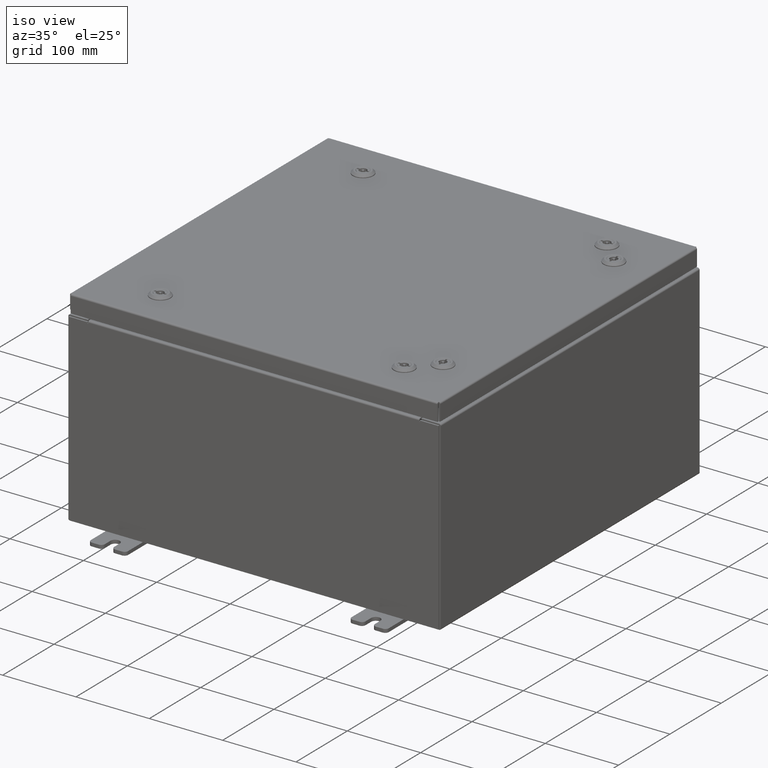
[diagram: clean part render]
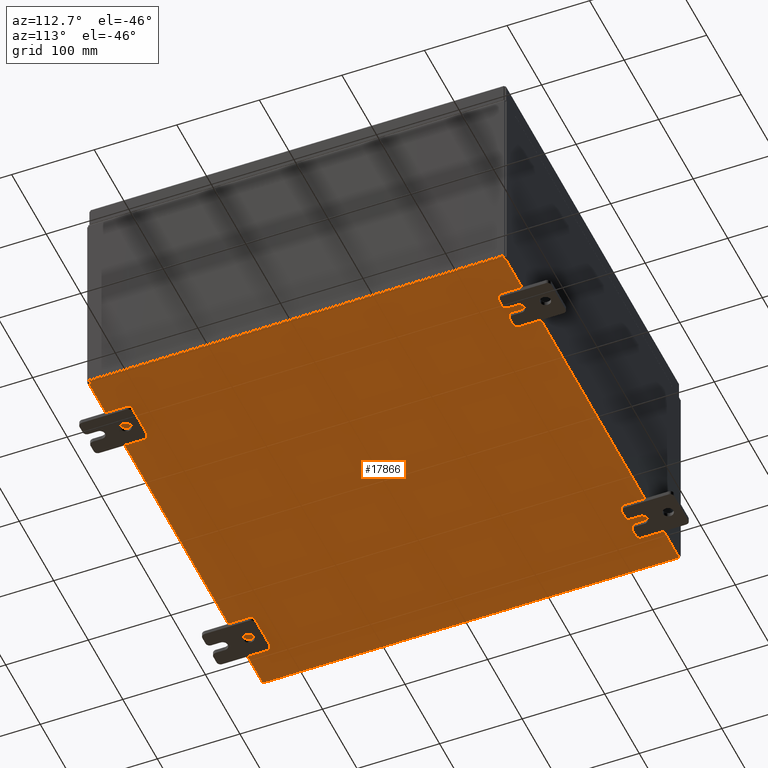
[diagram: tour spotlight — one face highlighted and labeled with its STEP entity id]
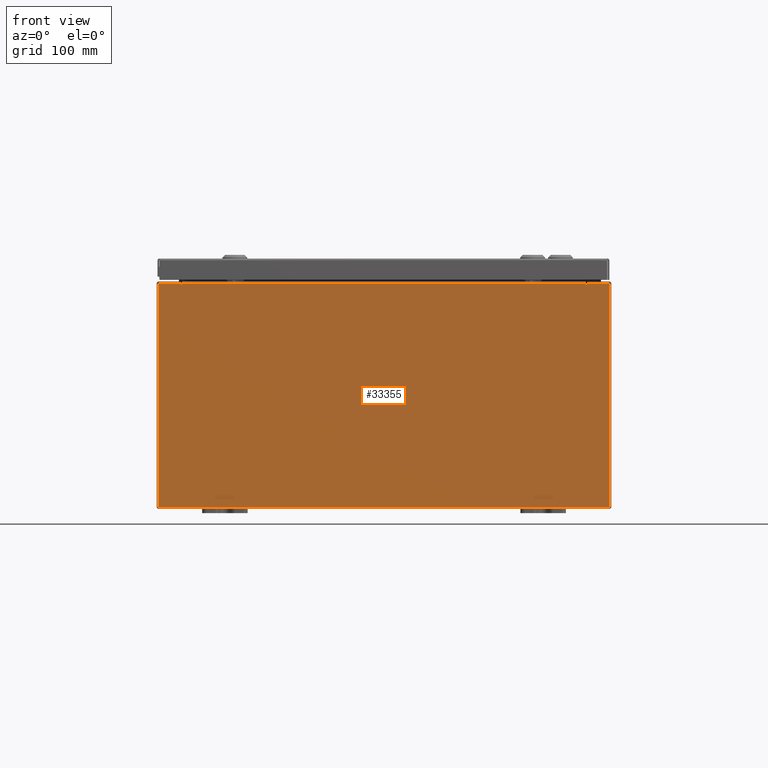
[diagram: tour spotlight — one face highlighted and labeled with its STEP entity id]
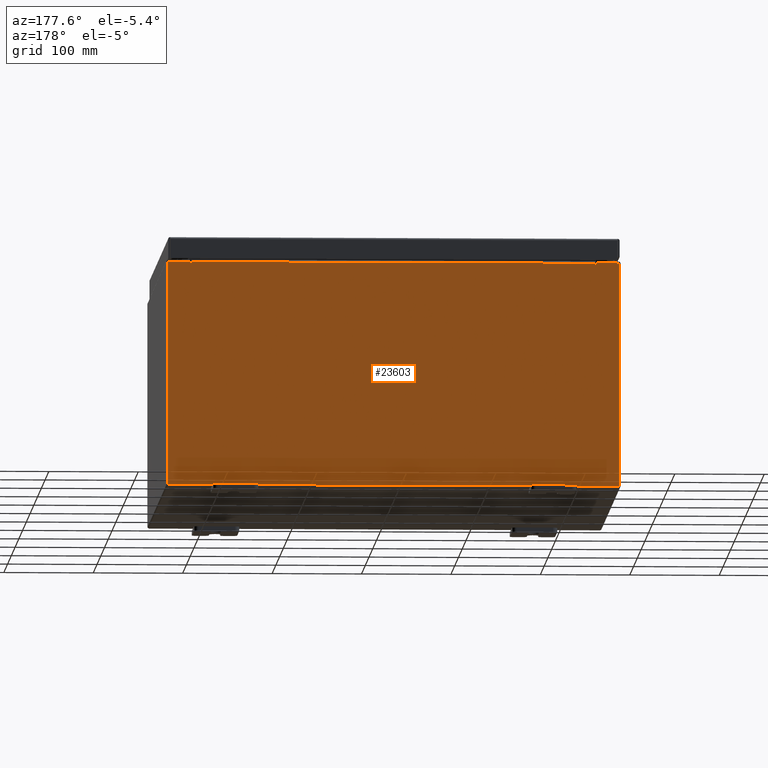
[diagram: tour spotlight — one face highlighted and labeled with its STEP entity id]
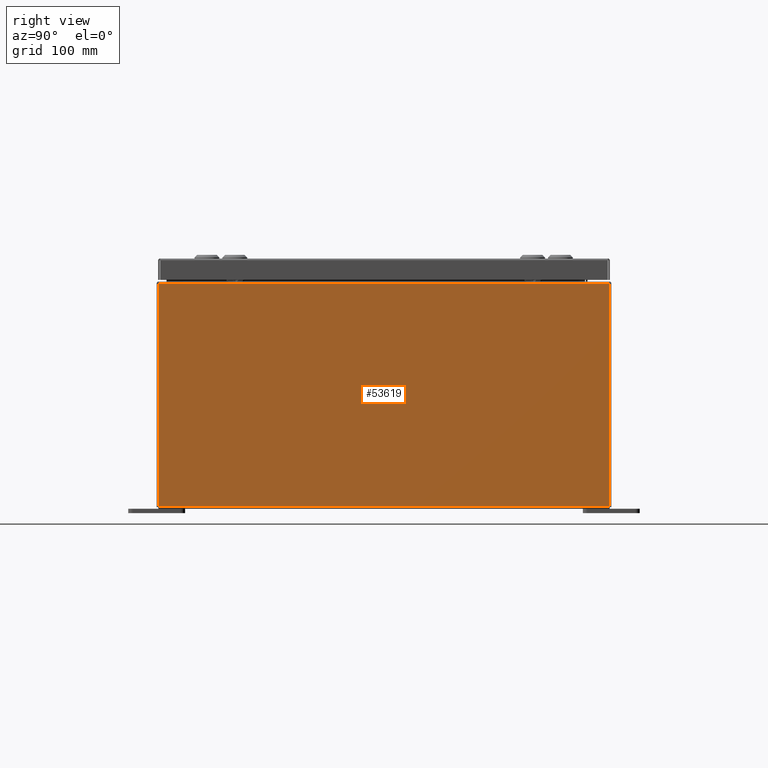
[diagram: tour spotlight — one face highlighted and labeled with its STEP entity id]
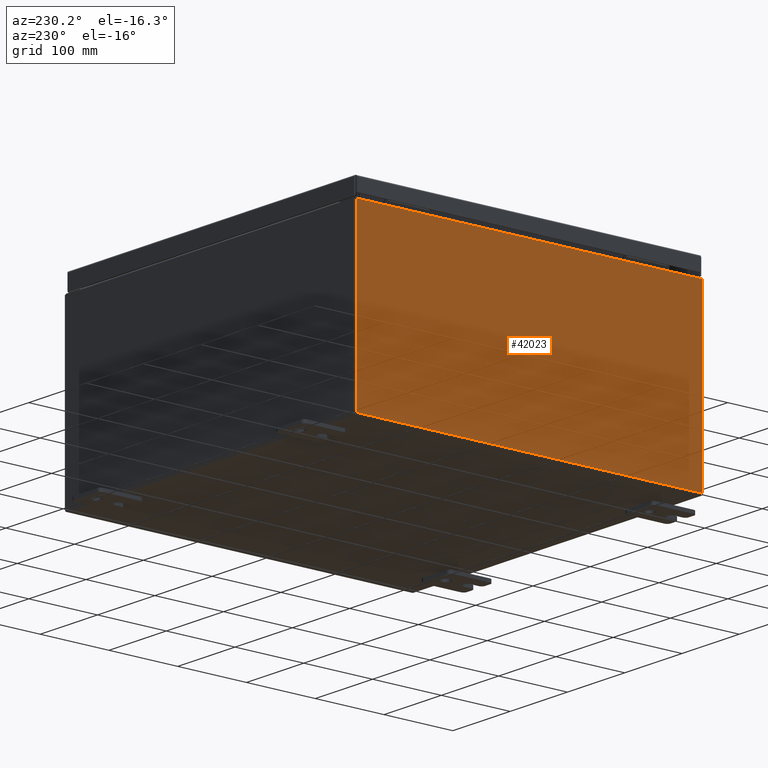
[diagram: tour spotlight — one face highlighted and labeled with its STEP entity id]
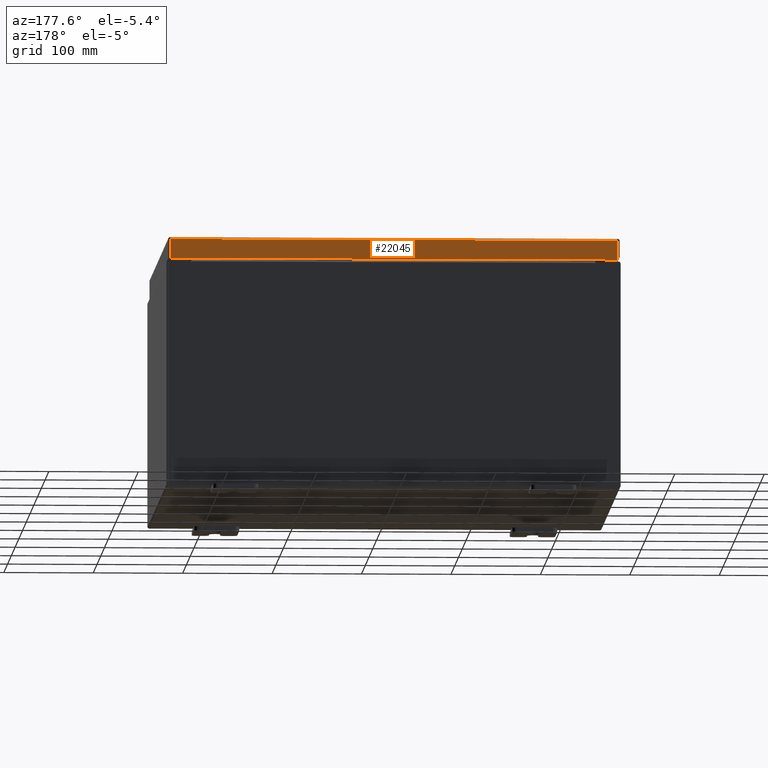
[diagram: tour spotlight — one face highlighted and labeled with its STEP entity id]
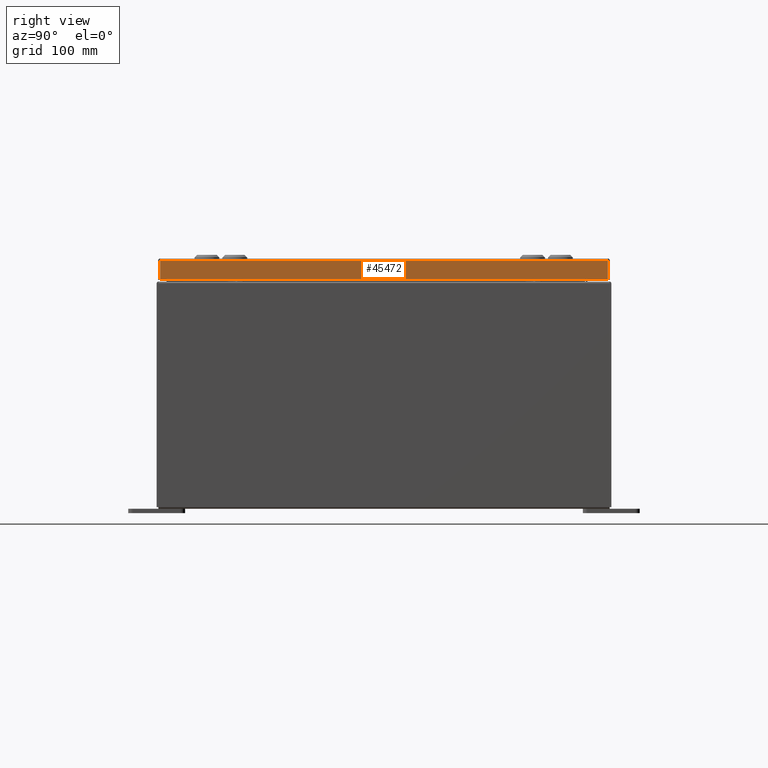
[diagram: tour spotlight — one face highlighted and labeled with its STEP entity id]
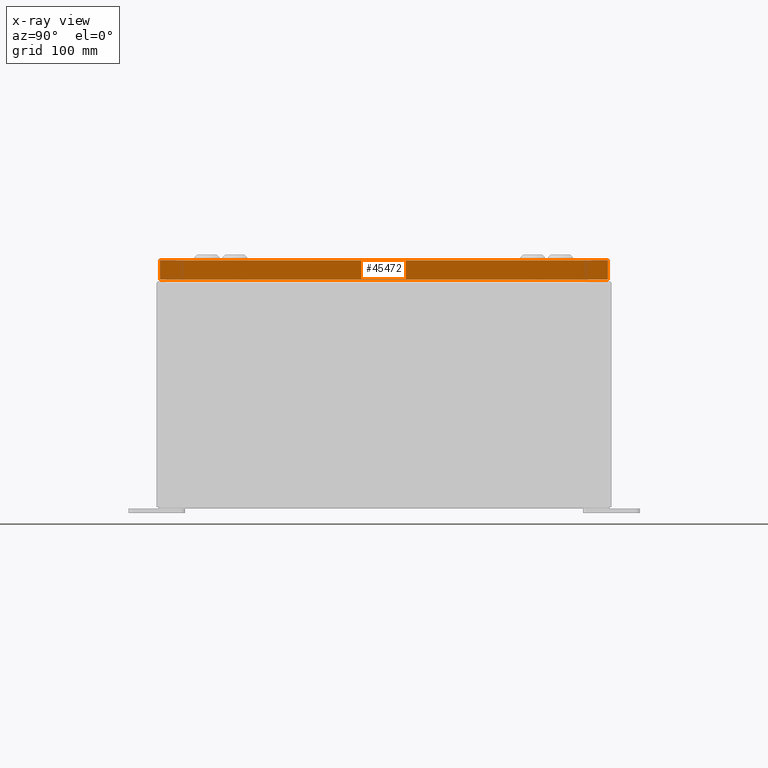
[diagram: x-ray of the same camera — body ghosted, this tour face saturated]
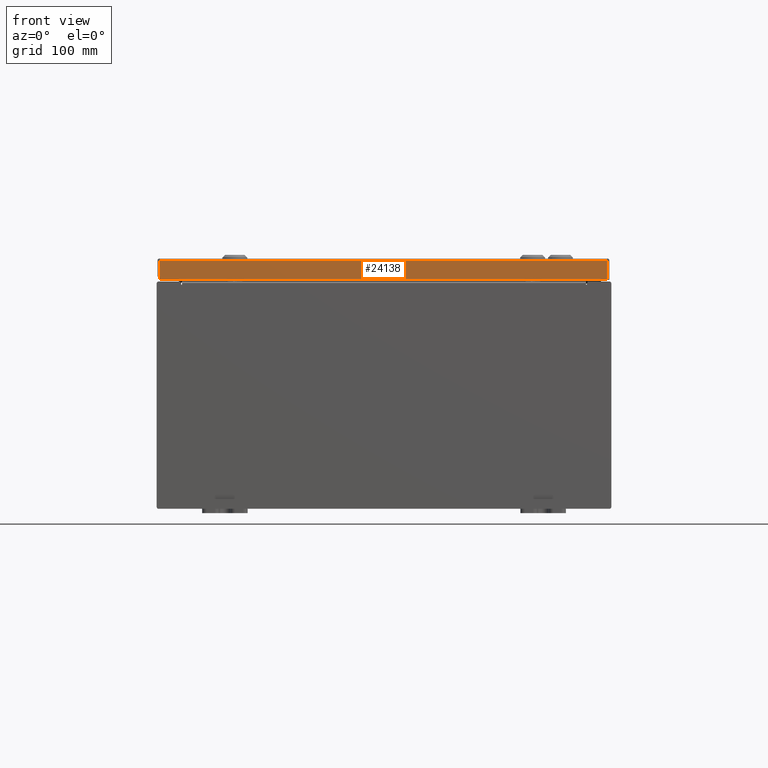
[diagram: tour spotlight — one face highlighted and labeled with its STEP entity id]
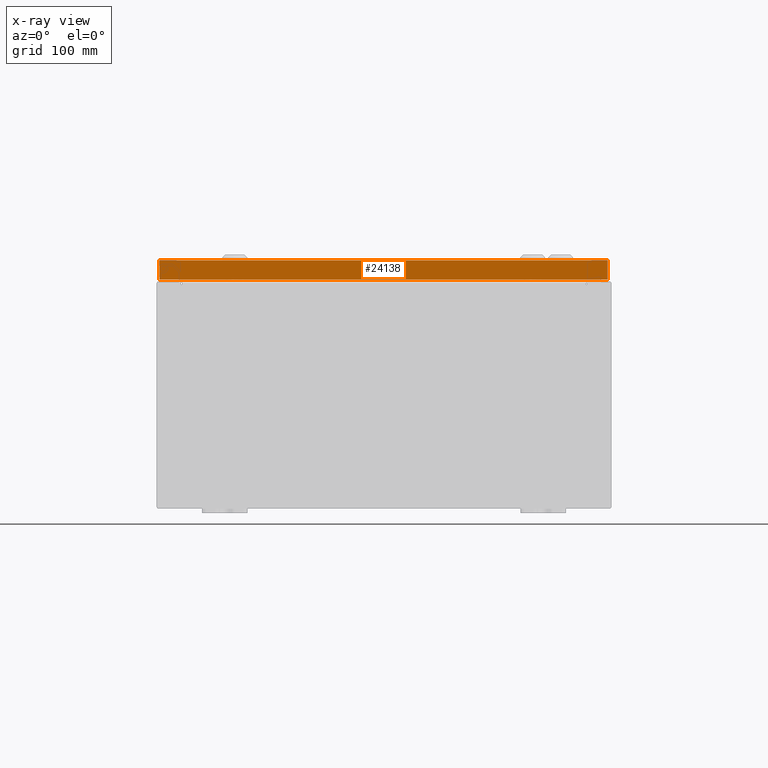
[diagram: x-ray of the same camera — body ghosted, this tour face saturated]
A machine part: a face-by-face anatomy tour. The part has 5420 B-rep faces; the first image is the clean iso view, then the 8 largest visible faces are spotlighted one at a time (largest first), each with its STEP entity span.

Face 1 — auxiliary view, entity #17866. In plain terms, the highlighted planar face has unit normal (0, 0, -1).
Definition (entity closure, byte-faithful):
#966 = DIRECTION ( 'NONE',  ( -0.0000000000000000000, -1.000000000000000000, -0.0000000000000000000 ) ) ;
#1822 = VECTOR ( 'NONE', #48855, 39.37007874015748100 ) ;
#2747 = CARTESIAN_POINT ( 'NONE',  ( 9.912300000000000100, 9.925299999999998200, -0.07469999999999994700 ) ) ;
#4089 = EDGE_CURVE ( 'NONE', #59788, #8283, #59380, .T. ) ;
#5660 = VECTOR ( 'NONE', #39935, 39.37007874015748100 ) ;
#6390 = LINE ( 'NONE', #9672, #1822 ) ;
#7808 = PLANE ( 'NONE',  #49365 ) ;
#8283 = VERTEX_POINT ( 'NONE', #26475 ) ;
#8481 = ORIENTED_EDGE ( 'NONE', *, *, #4089, .F. ) ;
#9672 = CARTESIAN_POINT ( 'NONE',  ( -9.912300000000000100, -9.925299999999998200, -0.07469999999999994700 ) ) ;
#10809 = CARTESIAN_POINT ( 'NONE',  ( 9.912300000000000100, 9.925300000000001800, -0.07469999999999994700 ) ) ;
#12325 = EDGE_CURVE ( 'NONE', #13354, #14146, #29523, .T. ) ;
#13354 = VERTEX_POINT ( 'NONE', #18560 ) ;
#14146 = VERTEX_POINT ( 'NONE', #58569 ) ;
#15110 = ORIENTED_EDGE ( 'NONE', *, *, #16945, .T. ) ;
#16945 = EDGE_CURVE ( 'NONE', #13354, #8283, #6390, .T. ) ;
#17517 = ORIENTED_EDGE ( 'NONE', *, *, #12325, .F. ) ;
#17866 = ADVANCED_FACE ( 'NONE', ( #56969 ), #7808, .T. ) ;
#18560 = CARTESIAN_POINT ( 'NONE',  ( -9.912300000000000100, -9.925299999999996500, -0.07469999999999994700 ) ) ;
#21784 = ORIENTED_EDGE ( 'NONE', *, *, #58938, .T. ) ;
#26475 = CARTESIAN_POINT ( 'NONE',  ( -9.912300000000000100, 9.925300000000001800, -0.07470000000000000300 ) ) ;
#27491 = DIRECTION ( 'NONE',  ( 0.0000000000000000000, 0.0000000000000000000, -1.000000000000000000 ) ) ;
#29523 = LINE ( 'NONE', #34141, #52535 ) ;
#34105 = VECTOR ( 'NONE', #966, 39.37007874015748100 ) ;
#34141 = CARTESIAN_POINT ( 'NONE',  ( -10.00000000000000000, -9.925299999999998200, -0.07470000000000000300 ) ) ;
#39935 = DIRECTION ( 'NONE',  ( -1.000000000000000000, -0.0000000000000000000, -0.0000000000000000000 ) ) ;
#45096 = EDGE_LOOP ( 'NONE', ( #17517, #15110, #8481, #21784 ) ) ;
#47003 = CARTESIAN_POINT ( 'NONE',  ( 0.0000000000000000000, 0.0000000000000000000, -0.07470000000000000300 ) ) ;
#48703 = LINE ( 'NONE', #10809, #34105 ) ;
#48855 = DIRECTION ( 'NONE',  ( -0.0000000000000000000, 1.000000000000000000, -0.0000000000000000000 ) ) ;
#49365 = AXIS2_PLACEMENT_3D ( 'NONE', #47003, #27491, #61823 ) ;
#52535 = VECTOR ( 'NONE', #63341, 39.37007874015748100 ) ;
#53770 = CARTESIAN_POINT ( 'NONE',  ( -10.00000000000000000, 9.925300000000001800, -0.07470000000000000300 ) ) ;
#56969 = FACE_OUTER_BOUND ( 'NONE', #45096, .T. ) ;
#58569 = CARTESIAN_POINT ( 'NONE',  ( 9.912300000000000100, -9.925299999999998200, -0.07470000000000000300 ) ) ;
#58938 = EDGE_CURVE ( 'NONE', #59788, #14146, #48703, .T. ) ;
#59380 = LINE ( 'NONE', #53770, #5660 ) ;
#59788 = VERTEX_POINT ( 'NONE', #2747 ) ;
#61823 = DIRECTION ( 'NONE',  ( -1.000000000000000000, 0.0000000000000000000, -0.0000000000000000000 ) ) ;
#63341 = DIRECTION ( 'NONE',  ( 1.000000000000000000, 0.0000000000000000000, 0.0000000000000000000 ) ) ;

Face 2 — front view, entity #33355. In plain terms, the highlighted planar face has unit normal (-0, 1, -0).
Definition (entity closure, byte-faithful):
#916 = CARTESIAN_POINT ( 'NONE',  ( 8.924550000000000000, 0.0000000000000000000, 4.874950000000000100 ) ) ;
#1231 = CARTESIAN_POINT ( 'NONE',  ( 9.925300000000000000, 0.0000000000000000000, 4.925300000000000000 ) ) ;
#2714 = DIRECTION ( 'NONE',  ( 0.0000000000000000000, -0.0000000000000000000, -1.000000000000000000 ) ) ;
#3171 = CARTESIAN_POINT ( 'NONE',  ( -9.925300000000000000, 0.0000000000000000000, -4.925300000000000000 ) ) ;
#3179 = CARTESIAN_POINT ( 'NONE',  ( 9.925300000000000000, 0.0000000000000000000, -4.925300000000000000 ) ) ;
#3961 = DIRECTION ( 'NONE',  ( 0.0000000000000000000, 0.0000000000000000000, -1.000000000000000000 ) ) ;
#5772 = VECTOR ( 'NONE', #8207, 39.37007874015748100 ) ;
#6126 = DIRECTION ( 'NONE',  ( 0.0000000000000000000, 0.0000000000000000000, -1.000000000000000000 ) ) ;
#6324 = ORIENTED_EDGE ( 'NONE', *, *, #10176, .T. ) ;
#6946 = CARTESIAN_POINT ( 'NONE',  ( 8.924549999999788600, -0.0000000000000000000, -3.873765880731794300E-013 ) ) ;
#8207 = DIRECTION ( 'NONE',  ( 1.000000000000000000, 0.0000000000000000000, 0.0000000000000000000 ) ) ;
#10176 = EDGE_CURVE ( 'NONE', #60413, #14926, #60407, .T. ) ;
#10393 = CARTESIAN_POINT ( 'NONE',  ( -9.925300000000000000, 0.0000000000000000000, 4.925300000000000000 ) ) ;
#10802 = EDGE_CURVE ( 'NONE', #16982, #40833, #56525, .T. ) ;
#11219 = LINE ( 'NONE', #6946, #60302 ) ;
#11547 = VERTEX_POINT ( 'NONE', #3179 ) ;
#12268 = DIRECTION ( 'NONE',  ( 0.0000000000000000000, 0.0000000000000000000, 1.000000000000000000 ) ) ;
#12315 = CARTESIAN_POINT ( 'NONE',  ( 8.887200000000000000, 0.0000000000000000000, 4.874950000000000100 ) ) ;
#12525 = DIRECTION ( 'NONE',  ( -0.0000000000000000000, -0.0000000000000000000, 1.000000000000000000 ) ) ;
#13521 = CARTESIAN_POINT ( 'NONE',  ( -8.924549999999998200, 0.0000000000000000000, 4.874950000000000100 ) ) ;
#14370 = VERTEX_POINT ( 'NONE', #916 ) ;
#14926 = VERTEX_POINT ( 'NONE', #63206 ) ;
#15158 = LINE ( 'NONE', #31736, #41227 ) ;
#15833 = EDGE_CURVE ( 'NONE', #14926, #15987, #42484, .T. ) ;
#15987 = VERTEX_POINT ( 'NONE', #20907 ) ;
#16316 = CARTESIAN_POINT ( 'NONE',  ( 8.887200000000000000, 0.0000000000000000000, 4.912300000000000100 ) ) ;
#16963 = ORIENTED_EDGE ( 'NONE', *, *, #51454, .T. ) ;
#16982 = VERTEX_POINT ( 'NONE', #53811 ) ;
#17719 = DIRECTION ( 'NONE',  ( -0.0000000000000000000, 1.000000000000000000, -0.0000000000000000000 ) ) ;
#18835 = LINE ( 'NONE', #62237, #5772 ) ;
#19413 = DIRECTION ( 'NONE',  ( 1.000000000000000000, 0.0000000000000000000, 0.0000000000000000000 ) ) ;
#19562 = CARTESIAN_POINT ( 'NONE',  ( -8.887200000000000000, -7.171100983368691200E-016, 4.912300000000000100 ) ) ;
#20907 = CARTESIAN_POINT ( 'NONE',  ( -8.924550000000000000, 0.0000000000000000000, 4.925300000000000000 ) ) ;
#21291 = VECTOR ( 'NONE', #12525, 39.37007874015748100 ) ;
#23260 = ORIENTED_EDGE ( 'NONE', *, *, #56567, .F. ) ;
#23845 = VERTEX_POINT ( 'NONE', #13521 ) ;
#25012 = EDGE_LOOP ( 'NONE', ( #42417, #23260, #33034, #56132, #29982, #61499, #45304, #42248, #62206, #16963, #6324, #49241 ) ) ;
#27557 = LINE ( 'NONE', #1231, #52070 ) ;
#28095 = CARTESIAN_POINT ( 'NONE',  ( -9.925300000000000000, 0.0000000000000000000, 4.925300000000000000 ) ) ;
#28763 = DIRECTION ( 'NONE',  ( 0.0000000000000000000, 0.0000000000000000000, 1.000000000000000000 ) ) ;
#29982 = ORIENTED_EDGE ( 'NONE', *, *, #47472, .F. ) ;
#30929 = CARTESIAN_POINT ( 'NONE',  ( -9.925300000000000000, 0.0000000000000000000, -4.925300000000000000 ) ) ;
#31736 = CARTESIAN_POINT ( 'NONE',  ( 8.887200000000000000, 0.0000000000000000000, 0.0000000000000000000 ) ) ;
#32032 = DIRECTION ( 'NONE',  ( 0.0000000000000000000, -1.000000000000000000, 0.0000000000000000000 ) ) ;
#32449 = DIRECTION ( 'NONE',  ( -0.0000000000000000000, 1.000000000000000000, -0.0000000000000000000 ) ) ;
#32508 = DIRECTION ( 'NONE',  ( -1.000000000000000000, -0.0000000000000000000, -0.0000000000000000000 ) ) ;
#33034 = ORIENTED_EDGE ( 'NONE', *, *, #51101, .F. ) ;
#33182 = EDGE_CURVE ( 'NONE', #40833, #11547, #27557, .T. ) ;
#33355 = ADVANCED_FACE ( 'NONE', ( #35980 ), #41707, .F. ) ;
#33400 = EDGE_CURVE ( 'NONE', #14370, #35915, #58992, .T. ) ;
#35311 = EDGE_CURVE ( 'NONE', #16982, #14370, #11219, .T. ) ;
#35915 = VERTEX_POINT ( 'NONE', #12315 ) ;
#35980 = FACE_OUTER_BOUND ( 'NONE', #25012, .T. ) ;
#35983 = EDGE_CURVE ( 'NONE', #54717, #40847, #18835, .T. ) ;
#36179 = AXIS2_PLACEMENT_3D ( 'NONE', #47038, #17719, #51943 ) ;
#36290 = DIRECTION ( 'NONE',  ( -4.340572780400004900E-014, 0.0000000000000000000, -1.000000000000000000 ) ) ;
#38415 = LINE ( 'NONE', #3171, #59931 ) ;
#38485 = LINE ( 'NONE', #63100, #63062 ) ;
#40447 = VERTEX_POINT ( 'NONE', #61796 ) ;
#40680 = CARTESIAN_POINT ( 'NONE',  ( 9.925300000000000000, 0.0000000000000000000, 4.925300000000000000 ) ) ;
#40833 = VERTEX_POINT ( 'NONE', #40680 ) ;
#40847 = VERTEX_POINT ( 'NONE', #16316 ) ;
#41227 = VECTOR ( 'NONE', #12268, 39.37007874015748100 ) ;
#41707 = PLANE ( 'NONE',  #56101 ) ;
#41770 = EDGE_CURVE ( 'NONE', #23845, #15987, #38485, .T. ) ;
#42248 = ORIENTED_EDGE ( 'NONE', *, *, #10802, .T. ) ;
#42417 = ORIENTED_EDGE ( 'NONE', *, *, #41770, .F. ) ;
#42484 = LINE ( 'NONE', #10393, #52430 ) ;
#45304 = ORIENTED_EDGE ( 'NONE', *, *, #35311, .F. ) ;
#45417 = DIRECTION ( 'NONE',  ( 0.0000000000000000000, 0.0000000000000000000, -1.000000000000000000 ) ) ;
#46627 = CARTESIAN_POINT ( 'NONE',  ( 0.0000000000000000000, 0.0000000000000000000, 0.0000000000000000000 ) ) ;
#46790 = CARTESIAN_POINT ( 'NONE',  ( -9.925300000000000000, 0.0000000000000000000, 4.925300000000000000 ) ) ;
#47038 = CARTESIAN_POINT ( 'NONE',  ( -8.905874999999998200, 0.0000000000000000000, 4.874950000000000100 ) ) ;
#47472 = EDGE_CURVE ( 'NONE', #35915, #40847, #15158, .T. ) ;
#47654 = LINE ( 'NONE', #50134, #59206 ) ;
#49241 = ORIENTED_EDGE ( 'NONE', *, *, #15833, .T. ) ;
#50134 = CARTESIAN_POINT ( 'NONE',  ( -8.887200000000000000, -0.0000000000000000000, 0.0000000000000000000 ) ) ;
#51101 = EDGE_CURVE ( 'NONE', #54717, #40447, #47654, .T. ) ;
#51454 = EDGE_CURVE ( 'NONE', #11547, #60413, #38415, .T. ) ;
#51943 = DIRECTION ( 'NONE',  ( 0.0000000000000000000, 0.0000000000000000000, -1.000000000000000000 ) ) ;
#52070 = VECTOR ( 'NONE', #6126, 39.37007874015748100 ) ;
#52430 = VECTOR ( 'NONE', #19413, 39.37007874015748100 ) ;
#52521 = DIRECTION ( 'NONE',  ( 1.000000000000000000, 0.0000000000000000000, 0.0000000000000000000 ) ) ;
#53811 = CARTESIAN_POINT ( 'NONE',  ( 8.924550000000000000, 0.0000000000000000000, 4.925300000000000000 ) ) ;
#54717 = VERTEX_POINT ( 'NONE', #19562 ) ;
#54966 = VECTOR ( 'NONE', #52521, 39.37007874015748100 ) ;
#56101 = AXIS2_PLACEMENT_3D ( 'NONE', #46627, #32032, #2714 ) ;
#56132 = ORIENTED_EDGE ( 'NONE', *, *, #35983, .T. ) ;
#56525 = LINE ( 'NONE', #28095, #54966 ) ;
#56567 = EDGE_CURVE ( 'NONE', #40447, #23845, #56568, .T. ) ;
#56568 = CIRCLE ( 'NONE', #36179, 0.01867500000000003900 ) ;
#58992 = CIRCLE ( 'NONE', #59374, 0.01867500000000003900 ) ;
#59206 = VECTOR ( 'NONE', #45417, 39.37007874015748100 ) ;
#59374 = AXIS2_PLACEMENT_3D ( 'NONE', #61879, #32449, #3961 ) ;
#59931 = VECTOR ( 'NONE', #32508, 39.37007874015748100 ) ;
#60302 = VECTOR ( 'NONE', #36290, 39.37007874015748100 ) ;
#60407 = LINE ( 'NONE', #46790, #21291 ) ;
#60413 = VERTEX_POINT ( 'NONE', #30929 ) ;
#61499 = ORIENTED_EDGE ( 'NONE', *, *, #33400, .F. ) ;
#61796 = CARTESIAN_POINT ( 'NONE',  ( -8.887200000000000000, -0.0000000000000000000, 4.874950000000000100 ) ) ;
#61879 = CARTESIAN_POINT ( 'NONE',  ( 8.905875000000000000, 0.0000000000000000000, 4.874950000000000100 ) ) ;
#62206 = ORIENTED_EDGE ( 'NONE', *, *, #33182, .T. ) ;
#62237 = CARTESIAN_POINT ( 'NONE',  ( -8.887200000000000000, -7.171100983368691200E-016, 4.912300000000000100 ) ) ;
#63062 = VECTOR ( 'NONE', #28763, 39.37007874015748100 ) ;
#63100 = CARTESIAN_POINT ( 'NONE',  ( -8.924550000000000000, -0.0000000000000000000, 0.0000000000000000000 ) ) ;
#63206 = CARTESIAN_POINT ( 'NONE',  ( -9.925300000000000000, 0.0000000000000000000, 4.925300000000000000 ) ) ;

Face 3 — auxiliary view, entity #23603. In plain terms, the highlighted planar face has unit normal (0, -1, 0).
Definition (entity closure, byte-faithful):
#2321 = AXIS2_PLACEMENT_3D ( 'NONE', #19915, #54182, #24838 ) ;
#2588 = VERTEX_POINT ( 'NONE', #11867 ) ;
#3768 = ORIENTED_EDGE ( 'NONE', *, *, #38138, .T. ) ;
#5011 = ORIENTED_EDGE ( 'NONE', *, *, #8972, .T. ) ;
#5948 = CARTESIAN_POINT ( 'NONE',  ( -8.905874999999998200, 0.0000000000000000000, 4.874950000000000100 ) ) ;
#6184 = CARTESIAN_POINT ( 'NONE',  ( -8.887200000000000000, -7.171100983368691200E-016, 4.912300000000000100 ) ) ;
#6744 = CARTESIAN_POINT ( 'NONE',  ( 8.887200000000000000, 0.0000000000000000000, 0.0000000000000000000 ) ) ;
#8972 = EDGE_CURVE ( 'NONE', #30805, #13214, #25938, .T. ) ;
#9441 = CARTESIAN_POINT ( 'NONE',  ( 9.925300000000000000, 0.0000000000000000000, -4.925300000000000000 ) ) ;
#10899 = DIRECTION ( 'NONE',  ( 0.0000000000000000000, 0.0000000000000000000, -1.000000000000000000 ) ) ;
#10979 = ORIENTED_EDGE ( 'NONE', *, *, #61920, .F. ) ;
#11070 = VERTEX_POINT ( 'NONE', #54230 ) ;
#11209 = CARTESIAN_POINT ( 'NONE',  ( 8.887200000000000000, 0.0000000000000000000, 4.874950000000000100 ) ) ;
#11759 = EDGE_CURVE ( 'NONE', #51331, #45296, #28785, .T. ) ;
#11833 = VECTOR ( 'NONE', #24206, 39.37007874015748100 ) ;
#11867 = CARTESIAN_POINT ( 'NONE',  ( -8.924550000000000000, 0.0000000000000000000, 4.925300000000000000 ) ) ;
#12607 = EDGE_CURVE ( 'NONE', #45296, #22436, #59466, .T. ) ;
#13157 = EDGE_CURVE ( 'NONE', #11070, #51331, #30330, .T. ) ;
#13214 = VERTEX_POINT ( 'NONE', #40714 ) ;
#13706 = VERTEX_POINT ( 'NONE', #25593 ) ;
#13708 = LINE ( 'NONE', #25393, #39760 ) ;
#14871 = LINE ( 'NONE', #48824, #11833 ) ;
#15203 = EDGE_CURVE ( 'NONE', #18355, #22303, #28678, .T. ) ;
#16075 = ORIENTED_EDGE ( 'NONE', *, *, #13157, .F. ) ;
#16828 = CARTESIAN_POINT ( 'NONE',  ( -9.925300000000000000, 0.0000000000000000000, 4.925300000000000000 ) ) ;
#17392 = CARTESIAN_POINT ( 'NONE',  ( 8.924550000000000000, 0.0000000000000000000, 4.874950000000000100 ) ) ;
#18355 = VERTEX_POINT ( 'NONE', #38024 ) ;
#18881 = VECTOR ( 'NONE', #30854, 39.37007874015748100 ) ;
#19139 = CARTESIAN_POINT ( 'NONE',  ( -9.925300000000000000, 0.0000000000000000000, -4.925300000000000000 ) ) ;
#19915 = CARTESIAN_POINT ( 'NONE',  ( 8.905875000000000000, 0.0000000000000000000, 4.874950000000000100 ) ) ;
#20287 = EDGE_LOOP ( 'NONE', ( #44503, #63138, #10979, #48024, #22730, #44237, #16075, #27049, #3768, #22318, #5011, #60380 ) ) ;
#20456 = CARTESIAN_POINT ( 'NONE',  ( -8.887200000000000000, -0.0000000000000000000, 0.0000000000000000000 ) ) ;
#21759 = DIRECTION ( 'NONE',  ( 1.000000000000000000, 0.0000000000000000000, 0.0000000000000000000 ) ) ;
#22303 = VERTEX_POINT ( 'NONE', #52588 ) ;
#22318 = ORIENTED_EDGE ( 'NONE', *, *, #52306, .T. ) ;
#22436 = VERTEX_POINT ( 'NONE', #58817 ) ;
#22490 = LINE ( 'NONE', #46317, #33888 ) ;
#22730 = ORIENTED_EDGE ( 'NONE', *, *, #12607, .F. ) ;
#23499 = EDGE_CURVE ( 'NONE', #13214, #2588, #63332, .T. ) ;
#23603 = ADVANCED_FACE ( 'NONE', ( #25763 ), #46776, .F. ) ;
#23832 = LINE ( 'NONE', #19139, #61445 ) ;
#24206 = DIRECTION ( 'NONE',  ( 0.0000000000000000000, 0.0000000000000000000, 1.000000000000000000 ) ) ;
#24838 = DIRECTION ( 'NONE',  ( 0.0000000000000000000, 0.0000000000000000000, -1.000000000000000000 ) ) ;
#25393 = CARTESIAN_POINT ( 'NONE',  ( -9.925300000000000000, 0.0000000000000000000, 4.925300000000000000 ) ) ;
#25593 = CARTESIAN_POINT ( 'NONE',  ( 9.925300000000000000, 0.0000000000000000000, 4.925300000000000000 ) ) ;
#25743 = DIRECTION ( 'NONE',  ( -0.0000000000000000000, -0.0000000000000000000, 1.000000000000000000 ) ) ;
#25763 = FACE_OUTER_BOUND ( 'NONE', #20287, .T. ) ;
#25820 = EDGE_CURVE ( 'NONE', #22303, #2588, #14871, .T. ) ;
#25938 = LINE ( 'NONE', #60267, #38940 ) ;
#27049 = ORIENTED_EDGE ( 'NONE', *, *, #33666, .T. ) ;
#27281 = DIRECTION ( 'NONE',  ( 0.0000000000000000000, -1.000000000000000000, 0.0000000000000000000 ) ) ;
#27423 = EDGE_CURVE ( 'NONE', #39774, #22436, #22490, .T. ) ;
#28678 = CIRCLE ( 'NONE', #48357, 0.01867500000000003900 ) ;
#28785 = CIRCLE ( 'NONE', #2321, 0.01867500000000003900 ) ;
#30330 = LINE ( 'NONE', #60263, #18881 ) ;
#30699 = AXIS2_PLACEMENT_3D ( 'NONE', #36922, #27281, #61616 ) ;
#30805 = VERTEX_POINT ( 'NONE', #45895 ) ;
#30854 = DIRECTION ( 'NONE',  ( -4.340572780400004900E-014, 0.0000000000000000000, -1.000000000000000000 ) ) ;
#31140 = DIRECTION ( 'NONE',  ( 0.0000000000000000000, 0.0000000000000000000, 1.000000000000000000 ) ) ;
#33666 = EDGE_CURVE ( 'NONE', #11070, #13706, #13708, .T. ) ;
#33888 = VECTOR ( 'NONE', #41368, 39.37007874015748100 ) ;
#34825 = LINE ( 'NONE', #20456, #60973 ) ;
#36438 = VECTOR ( 'NONE', #38913, 39.37007874015748100 ) ;
#36922 = CARTESIAN_POINT ( 'NONE',  ( 0.0000000000000000000, 0.0000000000000000000, 0.0000000000000000000 ) ) ;
#37942 = LINE ( 'NONE', #63374, #36438 ) ;
#38024 = CARTESIAN_POINT ( 'NONE',  ( -8.887200000000000000, -0.0000000000000000000, 4.874950000000000100 ) ) ;
#38138 = EDGE_CURVE ( 'NONE', #13706, #40705, #37942, .T. ) ;
#38913 = DIRECTION ( 'NONE',  ( 0.0000000000000000000, 0.0000000000000000000, -1.000000000000000000 ) ) ;
#38940 = VECTOR ( 'NONE', #25743, 39.37007874015748100 ) ;
#39760 = VECTOR ( 'NONE', #59687, 39.37007874015748100 ) ;
#39774 = VERTEX_POINT ( 'NONE', #6184 ) ;
#40222 = DIRECTION ( 'NONE',  ( -0.0000000000000000000, 1.000000000000000000, -0.0000000000000000000 ) ) ;
#40705 = VERTEX_POINT ( 'NONE', #9441 ) ;
#40714 = CARTESIAN_POINT ( 'NONE',  ( -9.925300000000000000, 0.0000000000000000000, 4.925300000000000000 ) ) ;
#41368 = DIRECTION ( 'NONE',  ( 1.000000000000000000, 0.0000000000000000000, 0.0000000000000000000 ) ) ;
#44237 = ORIENTED_EDGE ( 'NONE', *, *, #11759, .F. ) ;
#44503 = ORIENTED_EDGE ( 'NONE', *, *, #25820, .F. ) ;
#45296 = VERTEX_POINT ( 'NONE', #11209 ) ;
#45895 = CARTESIAN_POINT ( 'NONE',  ( -9.925300000000000000, 0.0000000000000000000, -4.925300000000000000 ) ) ;
#46317 = CARTESIAN_POINT ( 'NONE',  ( -8.887200000000000000, -7.171100983368691200E-016, 4.912300000000000100 ) ) ;
#46415 = VECTOR ( 'NONE', #31140, 39.37007874015748100 ) ;
#46776 = PLANE ( 'NONE',  #30699 ) ;
#48024 = ORIENTED_EDGE ( 'NONE', *, *, #27423, .T. ) ;
#48357 = AXIS2_PLACEMENT_3D ( 'NONE', #5948, #40222, #10899 ) ;
#48824 = CARTESIAN_POINT ( 'NONE',  ( -8.924550000000000000, -0.0000000000000000000, 0.0000000000000000000 ) ) ;
#49771 = DIRECTION ( 'NONE',  ( 0.0000000000000000000, 0.0000000000000000000, -1.000000000000000000 ) ) ;
#50272 = VECTOR ( 'NONE', #21759, 39.37007874015748100 ) ;
#51331 = VERTEX_POINT ( 'NONE', #17392 ) ;
#52306 = EDGE_CURVE ( 'NONE', #40705, #30805, #23832, .T. ) ;
#52588 = CARTESIAN_POINT ( 'NONE',  ( -8.924549999999998200, 0.0000000000000000000, 4.874950000000000100 ) ) ;
#54182 = DIRECTION ( 'NONE',  ( -0.0000000000000000000, 1.000000000000000000, -0.0000000000000000000 ) ) ;
#54230 = CARTESIAN_POINT ( 'NONE',  ( 8.924550000000000000, 0.0000000000000000000, 4.925300000000000000 ) ) ;
#58374 = DIRECTION ( 'NONE',  ( -1.000000000000000000, -0.0000000000000000000, -0.0000000000000000000 ) ) ;
#58817 = CARTESIAN_POINT ( 'NONE',  ( 8.887200000000000000, 0.0000000000000000000, 4.912300000000000100 ) ) ;
#59466 = LINE ( 'NONE', #6744, #46415 ) ;
#59687 = DIRECTION ( 'NONE',  ( 1.000000000000000000, 0.0000000000000000000, 0.0000000000000000000 ) ) ;
#60263 = CARTESIAN_POINT ( 'NONE',  ( 8.924549999999788600, -0.0000000000000000000, -3.873765880731794300E-013 ) ) ;
#60267 = CARTESIAN_POINT ( 'NONE',  ( -9.925300000000000000, 0.0000000000000000000, 4.925300000000000000 ) ) ;
#60380 = ORIENTED_EDGE ( 'NONE', *, *, #23499, .T. ) ;
#60973 = VECTOR ( 'NONE', #49771, 39.37007874015748100 ) ;
#61445 = VECTOR ( 'NONE', #58374, 39.37007874015748100 ) ;
#61616 = DIRECTION ( 'NONE',  ( 0.0000000000000000000, -0.0000000000000000000, -1.000000000000000000 ) ) ;
#61920 = EDGE_CURVE ( 'NONE', #39774, #18355, #34825, .T. ) ;
#63138 = ORIENTED_EDGE ( 'NONE', *, *, #15203, .F. ) ;
#63332 = LINE ( 'NONE', #16828, #50272 ) ;
#63374 = CARTESIAN_POINT ( 'NONE',  ( 9.925300000000000000, 0.0000000000000000000, 4.925300000000000000 ) ) ;

Face 4 — right view, entity #53619. In plain terms, the highlighted planar face has unit normal (-1, 0, 0).
Definition (entity closure, byte-faithful):
#252 = AXIS2_PLACEMENT_3D ( 'NONE', #14956, #11101, #45355 ) ;
#2247 = DIRECTION ( 'NONE',  ( -3.523082860860888200E-015, 0.0000000000000000000, -1.000000000000000000 ) ) ;
#4172 = DIRECTION ( 'NONE',  ( -0.0000000000000000000, -1.000000000000000000, -0.0000000000000000000 ) ) ;
#8038 = CARTESIAN_POINT ( 'NONE',  ( 10.00000000000000000, -9.925299999999998200, 0.01299999999999984300 ) ) ;
#11101 = DIRECTION ( 'NONE',  ( -1.000000000000000000, 0.0000000000000000000, 3.523082860860887800E-015 ) ) ;
#14956 = CARTESIAN_POINT ( 'NONE',  ( 10.00000000000000000, 0.0000000000000000000, -3.549164226462045900E-014 ) ) ;
#19603 = VECTOR ( 'NONE', #2247, 39.37007874015748100 ) ;
#20137 = ORIENTED_EDGE ( 'NONE', *, *, #57781, .T. ) ;
#21440 = LINE ( 'NONE', #33505, #32863 ) ;
#22254 = DIRECTION ( 'NONE',  ( -0.0000000000000000000, -1.000000000000000000, -0.0000000000000000000 ) ) ;
#24260 = VECTOR ( 'NONE', #51549, 39.37007874015748100 ) ;
#24644 = VERTEX_POINT ( 'NONE', #28337 ) ;
#26674 = CARTESIAN_POINT ( 'NONE',  ( 10.00000000000000000, -9.925299999999998200, -3.549164226462045900E-014 ) ) ;
#28337 = CARTESIAN_POINT ( 'NONE',  ( 10.00000000000000000, 9.925299999999998200, 0.01299999999999984700 ) ) ;
#30376 = ORIENTED_EDGE ( 'NONE', *, *, #60601, .T. ) ;
#30547 = PLANE ( 'NONE',  #252 ) ;
#32863 = VECTOR ( 'NONE', #4172, 39.37007874015748100 ) ;
#33462 = EDGE_CURVE ( 'NONE', #24644, #56624, #21440, .T. ) ;
#33505 = CARTESIAN_POINT ( 'NONE',  ( 10.00000000000000000, -9.925299999999998200, 0.01299999999999984700 ) ) ;
#36773 = ORIENTED_EDGE ( 'NONE', *, *, #63293, .T. ) ;
#36984 = CARTESIAN_POINT ( 'NONE',  ( 10.00000000000000000, 9.925300000000001800, -3.330616386968905300E-014 ) ) ;
#38104 = VERTEX_POINT ( 'NONE', #38704 ) ;
#38704 = CARTESIAN_POINT ( 'NONE',  ( 10.00000000000003600, -9.925299999999998200, 9.837599999999998300 ) ) ;
#39045 = LINE ( 'NONE', #51574, #49011 ) ;
#39924 = CARTESIAN_POINT ( 'NONE',  ( 10.00000000000003600, 9.925299999999996500, 9.837599999999998300 ) ) ;
#42496 = ORIENTED_EDGE ( 'NONE', *, *, #33462, .F. ) ;
#45355 = DIRECTION ( 'NONE',  ( 3.523082860860887800E-015, 0.0000000000000000000, 1.000000000000000000 ) ) ;
#47650 = EDGE_LOOP ( 'NONE', ( #36773, #30376, #42496, #20137 ) ) ;
#49011 = VECTOR ( 'NONE', #22254, 39.37007874015748100 ) ;
#51549 = DIRECTION ( 'NONE',  ( 3.523082860860888200E-015, -2.201926788038055100E-016, 1.000000000000000000 ) ) ;
#51574 = CARTESIAN_POINT ( 'NONE',  ( 10.00000000000003600, 9.925299999999998200, 9.837599999999998300 ) ) ;
#53619 = ADVANCED_FACE ( 'NONE', ( #55185 ), #30547, .F. ) ;
#55185 = FACE_OUTER_BOUND ( 'NONE', #47650, .T. ) ;
#56624 = VERTEX_POINT ( 'NONE', #8038 ) ;
#57178 = LINE ( 'NONE', #26674, #19603 ) ;
#57781 = EDGE_CURVE ( 'NONE', #24644, #58866, #63364, .T. ) ;
#58866 = VERTEX_POINT ( 'NONE', #39924 ) ;
#60601 = EDGE_CURVE ( 'NONE', #38104, #56624, #57178, .T. ) ;
#63293 = EDGE_CURVE ( 'NONE', #58866, #38104, #39045, .T. ) ;
#63364 = LINE ( 'NONE', #36984, #24260 ) ;

Face 5 — auxiliary view, entity #42023. In plain terms, the highlighted planar face has unit normal (1, 0, 0).
Definition (entity closure, byte-faithful):
#1343 = EDGE_CURVE ( 'NONE', #32714, #49587, #17414, .T. ) ;
#1630 = VERTEX_POINT ( 'NONE', #58328 ) ;
#1869 = CARTESIAN_POINT ( 'NONE',  ( -10.00000000000000000, 9.925300000000001800, 0.01299999999999984700 ) ) ;
#2581 = LINE ( 'NONE', #53137, #15599 ) ;
#4753 = FACE_OUTER_BOUND ( 'NONE', #39887, .T. ) ;
#5003 = DIRECTION ( 'NONE',  ( -3.523082860860888200E-015, 0.0000000000000000000, 1.000000000000000000 ) ) ;
#5058 = PLANE ( 'NONE',  #54515 ) ;
#5813 = DIRECTION ( 'NONE',  ( 3.523082860860888200E-015, 0.0000000000000000000, -1.000000000000000000 ) ) ;
#6031 = CARTESIAN_POINT ( 'NONE',  ( -10.00000000000000000, 9.925300000000001800, -3.549164226462045900E-014 ) ) ;
#7374 = VERTEX_POINT ( 'NONE', #14708 ) ;
#14141 = DIRECTION ( 'NONE',  ( 0.0000000000000000000, 1.000000000000000000, 0.0000000000000000000 ) ) ;
#14661 = ORIENTED_EDGE ( 'NONE', *, *, #40631, .T. ) ;
#14708 = CARTESIAN_POINT ( 'NONE',  ( -10.00000000000003600, 9.925300000000005300, 9.837599999999998300 ) ) ;
#15599 = VECTOR ( 'NONE', #14141, 39.37007874015748100 ) ;
#15790 = DIRECTION ( 'NONE',  ( -0.0000000000000000000, 1.000000000000000000, -0.0000000000000000000 ) ) ;
#17414 = LINE ( 'NONE', #28029, #54931 ) ;
#24808 = VECTOR ( 'NONE', #5813, 39.37007874015748100 ) ;
#25819 = ORIENTED_EDGE ( 'NONE', *, *, #51929, .F. ) ;
#28029 = CARTESIAN_POINT ( 'NONE',  ( -10.00000000000000000, -9.925299999999998200, -3.549164226462045900E-014 ) ) ;
#28614 = CARTESIAN_POINT ( 'NONE',  ( -10.00000000000000000, -9.925299999999996500, 0.01299999999999984700 ) ) ;
#29684 = DIRECTION ( 'NONE',  ( 3.523082860860887800E-015, 0.0000000000000000000, -1.000000000000000000 ) ) ;
#32714 = VERTEX_POINT ( 'NONE', #28614 ) ;
#37822 = LINE ( 'NONE', #6031, #24808 ) ;
#39887 = EDGE_LOOP ( 'NONE', ( #14661, #54243, #25819, #46145 ) ) ;
#40631 = EDGE_CURVE ( 'NONE', #49587, #7374, #2581, .T. ) ;
#42023 = ADVANCED_FACE ( 'NONE', ( #4753 ), #5058, .F. ) ;
#46145 = ORIENTED_EDGE ( 'NONE', *, *, #1343, .T. ) ;
#47602 = LINE ( 'NONE', #1869, #59146 ) ;
#49125 = EDGE_CURVE ( 'NONE', #7374, #1630, #37822, .T. ) ;
#49202 = CARTESIAN_POINT ( 'NONE',  ( -10.00000000000000000, 0.0000000000000000000, -3.549164226462045900E-014 ) ) ;
#49587 = VERTEX_POINT ( 'NONE', #53775 ) ;
#51929 = EDGE_CURVE ( 'NONE', #32714, #1630, #47602, .T. ) ;
#53137 = CARTESIAN_POINT ( 'NONE',  ( -10.00000000000003400, -9.925299999999996500, 9.837599999999998300 ) ) ;
#53775 = CARTESIAN_POINT ( 'NONE',  ( -10.00000000000003400, -9.925299999999996500, 9.837599999999998300 ) ) ;
#54243 = ORIENTED_EDGE ( 'NONE', *, *, #49125, .T. ) ;
#54515 = AXIS2_PLACEMENT_3D ( 'NONE', #49202, #59093, #29684 ) ;
#54931 = VECTOR ( 'NONE', #5003, 39.37007874015748100 ) ;
#58328 = CARTESIAN_POINT ( 'NONE',  ( -10.00000000000000000, 9.925300000000001800, 0.01299999999999984300 ) ) ;
#59093 = DIRECTION ( 'NONE',  ( 1.000000000000000000, 0.0000000000000000000, 3.523082860860887800E-015 ) ) ;
#59146 = VECTOR ( 'NONE', #15790, 39.37007874015748100 ) ;

Face 6 — auxiliary view, entity #22045. In plain terms, the highlighted planar face has unit normal (0, -1, -0).
Definition (entity closure, byte-faithful):
#2096 = DIRECTION ( 'NONE',  ( 0.0000000000000000000, 2.532419924601859000E-015, -1.000000000000000000 ) ) ;
#2718 = VERTEX_POINT ( 'NONE', #23146 ) ;
#2745 = LINE ( 'NONE', #14173, #15775 ) ;
#5221 = DIRECTION ( 'NONE',  ( -0.0000000000000000000, 2.532419924601859000E-015, -1.000000000000000000 ) ) ;
#5623 = ORIENTED_EDGE ( 'NONE', *, *, #36141, .F. ) ;
#7343 = VECTOR ( 'NONE', #9047, 39.37007874015748100 ) ;
#8456 = AXIS2_PLACEMENT_3D ( 'NONE', #21616, #31405, #2096 ) ;
#9047 = DIRECTION ( 'NONE',  ( 1.000000000000000000, -4.379057701015054300E-047, 1.237063242414006500E-016 ) ) ;
#10181 = CARTESIAN_POINT ( 'NONE',  ( -9.848657864376269400, 9.937499999999998200, -0.07469999999999980800 ) ) ;
#10541 = VERTEX_POINT ( 'NONE', #55013 ) ;
#14060 = EDGE_CURVE ( 'NONE', #20329, #2718, #31840, .T. ) ;
#14173 = CARTESIAN_POINT ( 'NONE',  ( -9.937500000000000000, 9.937499999999998200, -0.08770000000000008300 ) ) ;
#15775 = VECTOR ( 'NONE', #53378, 39.37007874015748100 ) ;
#18619 = EDGE_CURVE ( 'NONE', #28143, #20329, #32332, .T. ) ;
#19672 = CARTESIAN_POINT ( 'NONE',  ( -9.848657864376269400, 9.937500000000000000, -0.9377000000000023100 ) ) ;
#20329 = VERTEX_POINT ( 'NONE', #19672 ) ;
#21616 = CARTESIAN_POINT ( 'NONE',  ( -3.113183830562546900E-030, 9.937499999999998200, 2.542673665674255300E-014 ) ) ;
#22045 = ADVANCED_FACE ( 'NONE', ( #38079 ), #60832, .F. ) ;
#23146 = CARTESIAN_POINT ( 'NONE',  ( 9.848657864376265900, 9.937500000000000000, -0.9376999999999997600 ) ) ;
#28143 = VERTEX_POINT ( 'NONE', #62249 ) ;
#29066 = LINE ( 'NONE', #35085, #53631 ) ;
#31405 = DIRECTION ( 'NONE',  ( 3.132763603081808900E-031, -1.000000000000000000, -2.532419924601859000E-015 ) ) ;
#31840 = LINE ( 'NONE', #43313, #7343 ) ;
#32332 = LINE ( 'NONE', #10181, #56900 ) ;
#35085 = CARTESIAN_POINT ( 'NONE',  ( 9.848657864376265900, 9.937499999999998200, 2.542673665674255300E-014 ) ) ;
#36141 = EDGE_CURVE ( 'NONE', #10541, #28143, #2745, .T. ) ;
#36606 = EDGE_LOOP ( 'NONE', ( #5623, #54723, #57073, #60921 ) ) ;
#38079 = FACE_OUTER_BOUND ( 'NONE', #36606, .T. ) ;
#43313 = CARTESIAN_POINT ( 'NONE',  ( -9.937500000000000000, 9.937500000000000000, -0.9377000000000023100 ) ) ;
#49644 = DIRECTION ( 'NONE',  ( 0.0000000000000000000, 2.532419924601859000E-015, -1.000000000000000000 ) ) ;
#53378 = DIRECTION ( 'NONE',  ( -1.000000000000000000, -3.132763603081809300E-031, -7.843572268217971900E-046 ) ) ;
#53631 = VECTOR ( 'NONE', #49644, 39.37007874015748100 ) ;
#54723 = ORIENTED_EDGE ( 'NONE', *, *, #63178, .T. ) ;
#55013 = CARTESIAN_POINT ( 'NONE',  ( 9.848657864376265900, 9.937499999999998200, -0.08770000000000008300 ) ) ;
#56900 = VECTOR ( 'NONE', #5221, 39.37007874015748100 ) ;
#57073 = ORIENTED_EDGE ( 'NONE', *, *, #14060, .F. ) ;
#60832 = PLANE ( 'NONE',  #8456 ) ;
#60921 = ORIENTED_EDGE ( 'NONE', *, *, #18619, .F. ) ;
#62249 = CARTESIAN_POINT ( 'NONE',  ( -9.848657864376265900, 9.937499999999998200, -0.08770000000000008300 ) ) ;
#63178 = EDGE_CURVE ( 'NONE', #10541, #2718, #29066, .T. ) ;

Face 7 — right view, entity #45472. An x-ray twin of the same camera follows (body ghosted, this face saturated) — the face is partly hidden behind the body. In plain terms, the highlighted planar face has unit normal (1, 0, 0).
Definition (entity closure, byte-faithful):
#610 = DIRECTION ( 'NONE',  ( 0.0000000000000000000, -1.000000000000000000, 0.0000000000000000000 ) ) ;
#2670 = LINE ( 'NONE', #57202, #15699 ) ;
#5064 = VECTOR ( 'NONE', #40491, 39.37007874015748100 ) ;
#7605 = VERTEX_POINT ( 'NONE', #31860 ) ;
#11193 = EDGE_CURVE ( 'NONE', #62938, #54680, #44162, .T. ) ;
#12275 = DIRECTION ( 'NONE',  ( 1.000000000000000000, 0.0000000000000000000, 2.532419924601866100E-015 ) ) ;
#15699 = VECTOR ( 'NONE', #18005, 39.37007874015748100 ) ;
#18005 = DIRECTION ( 'NONE',  ( 0.0000000000000000000, -1.000000000000000000, 0.0000000000000000000 ) ) ;
#18240 = LINE ( 'NONE', #43622, #42753 ) ;
#22127 = ORIENTED_EDGE ( 'NONE', *, *, #11193, .F. ) ;
#25241 = EDGE_CURVE ( 'NONE', #60693, #62938, #2670, .T. ) ;
#28658 = CARTESIAN_POINT ( 'NONE',  ( 9.937500000000000000, -9.848657864376264100, -0.9376999999999997600 ) ) ;
#29110 = AXIS2_PLACEMENT_3D ( 'NONE', #41392, #12275, #46544 ) ;
#31350 = ORIENTED_EDGE ( 'NONE', *, *, #63130, .T. ) ;
#31860 = CARTESIAN_POINT ( 'NONE',  ( 9.937499999999998200, 9.848657864376269400, -0.08770000000000008300 ) ) ;
#35574 = CARTESIAN_POINT ( 'NONE',  ( 9.937499999999998200, -9.848657864376271200, -0.07469999999999980800 ) ) ;
#36721 = ORIENTED_EDGE ( 'NONE', *, *, #55981, .T. ) ;
#40491 = DIRECTION ( 'NONE',  ( -2.532419924601866100E-015, -6.982962677686267500E-015, 1.000000000000000000 ) ) ;
#41392 = CARTESIAN_POINT ( 'NONE',  ( 9.937499999999998200, 0.0000000000000000000, 2.542673665674262200E-014 ) ) ;
#41613 = PLANE ( 'NONE',  #29110 ) ;
#42157 = VECTOR ( 'NONE', #610, 39.37007874015748100 ) ;
#42753 = VECTOR ( 'NONE', #48570, 39.37007874015748100 ) ;
#43005 = EDGE_LOOP ( 'NONE', ( #22127, #54356, #36721, #31350 ) ) ;
#43622 = CARTESIAN_POINT ( 'NONE',  ( 9.937499999999998200, 9.848657864376265900, 9.419954694898343600E-014 ) ) ;
#44162 = LINE ( 'NONE', #35574, #5064 ) ;
#45472 = ADVANCED_FACE ( 'NONE', ( #57470 ), #41613, .T. ) ;
#45647 = CARTESIAN_POINT ( 'NONE',  ( 9.937500000000000000, 9.848657864376273000, -0.9376999999999997600 ) ) ;
#46544 = DIRECTION ( 'NONE',  ( 2.532419924601866100E-015, 0.0000000000000000000, -1.000000000000000000 ) ) ;
#48037 = CARTESIAN_POINT ( 'NONE',  ( 9.937499999999998200, -9.848657864376271200, -0.08770000000000008300 ) ) ;
#48570 = DIRECTION ( 'NONE',  ( -2.532419924601866100E-015, -6.982962677686267500E-015, 1.000000000000000000 ) ) ;
#54356 = ORIENTED_EDGE ( 'NONE', *, *, #25241, .F. ) ;
#54680 = VERTEX_POINT ( 'NONE', #48037 ) ;
#55189 = LINE ( 'NONE', #59337, #42157 ) ;
#55981 = EDGE_CURVE ( 'NONE', #60693, #7605, #18240, .T. ) ;
#57202 = CARTESIAN_POINT ( 'NONE',  ( 9.937500000000000000, -9.937500000000001800, -0.9376999999999997600 ) ) ;
#57470 = FACE_OUTER_BOUND ( 'NONE', #43005, .T. ) ;
#59337 = CARTESIAN_POINT ( 'NONE',  ( 9.937499999999998200, 0.0000000000000000000, -0.08770000000000008300 ) ) ;
#60693 = VERTEX_POINT ( 'NONE', #45647 ) ;
#62938 = VERTEX_POINT ( 'NONE', #28658 ) ;
#63130 = EDGE_CURVE ( 'NONE', #7605, #54680, #55189, .T. ) ;

Face 8 — front view, entity #24138. An x-ray twin of the same camera follows (body ghosted, this face saturated) — the face is partly hidden behind the body. In plain terms, the highlighted planar face has unit normal (-0, 1, -0).
Definition (entity closure, byte-faithful):
#15 = DIRECTION ( 'NONE',  ( -0.0000000000000000000, -2.532419924601866100E-015, -1.000000000000000000 ) ) ;
#429 = LINE ( 'NONE', #34258, #37966 ) ;
#4977 = EDGE_CURVE ( 'NONE', #10614, #59926, #36312, .T. ) ;
#5340 = CARTESIAN_POINT ( 'NONE',  ( 3.113183830562557100E-030, -9.937500000000001800, 2.542673665674263500E-014 ) ) ;
#8130 = CARTESIAN_POINT ( 'NONE',  ( 9.937499999999998200, -9.937500000000001800, -0.08770000000000008300 ) ) ;
#8973 = CARTESIAN_POINT ( 'NONE',  ( 9.937499999999998200, -9.937500000000003600, -0.9376999999999997600 ) ) ;
#9115 = EDGE_CURVE ( 'NONE', #23627, #59926, #51987, .T. ) ;
#10614 = VERTEX_POINT ( 'NONE', #50489 ) ;
#17899 = DIRECTION ( 'NONE',  ( -1.000000000000000000, 4.379057701015054300E-047, 1.237063242414006500E-016 ) ) ;
#18013 = DIRECTION ( 'NONE',  ( 1.000000000000000000, 3.132763603081818100E-031, -7.843572268217993600E-046 ) ) ;
#23627 = VERTEX_POINT ( 'NONE', #37126 ) ;
#24018 = EDGE_CURVE ( 'NONE', #47535, #10614, #429, .T. ) ;
#24138 = ADVANCED_FACE ( 'NONE', ( #59473 ), #44555, .F. ) ;
#27255 = CARTESIAN_POINT ( 'NONE',  ( 9.848657864376264100, -9.937500000000001800, -0.08770000000000008300 ) ) ;
#27816 = ORIENTED_EDGE ( 'NONE', *, *, #24018, .F. ) ;
#29187 = ORIENTED_EDGE ( 'NONE', *, *, #60901, .F. ) ;
#29971 = DIRECTION ( 'NONE',  ( 0.0000000000000000000, 2.532419924601866100E-015, 1.000000000000000000 ) ) ;
#31709 = DIRECTION ( 'NONE',  ( 0.0000000000000000000, -2.532419924601866100E-015, -1.000000000000000000 ) ) ;
#32901 = ORIENTED_EDGE ( 'NONE', *, *, #4977, .F. ) ;
#34258 = CARTESIAN_POINT ( 'NONE',  ( 9.848657864376265900, -9.937500000000001800, -0.07469999999999980800 ) ) ;
#34751 = VECTOR ( 'NONE', #17899, 39.37007874015748100 ) ;
#36312 = LINE ( 'NONE', #8973, #34751 ) ;
#36459 = VECTOR ( 'NONE', #18013, 39.37007874015748100 ) ;
#37126 = CARTESIAN_POINT ( 'NONE',  ( -9.848657864376264100, -9.937500000000001800, -0.08770000000000008300 ) ) ;
#37966 = VECTOR ( 'NONE', #15, 39.37007874015748100 ) ;
#44555 = PLANE ( 'NONE',  #45945 ) ;
#45945 = AXIS2_PLACEMENT_3D ( 'NONE', #5340, #59389, #29971 ) ;
#46313 = CARTESIAN_POINT ( 'NONE',  ( -9.848657864376265900, -9.937500000000001800, 2.542673665674263500E-014 ) ) ;
#47535 = VERTEX_POINT ( 'NONE', #27255 ) ;
#50489 = CARTESIAN_POINT ( 'NONE',  ( 9.848657864376265900, -9.937500000000003600, -0.9376999999999997600 ) ) ;
#50693 = ORIENTED_EDGE ( 'NONE', *, *, #9115, .T. ) ;
#51987 = LINE ( 'NONE', #46313, #60469 ) ;
#52609 = CARTESIAN_POINT ( 'NONE',  ( -9.848657864376264100, -9.937500000000003600, -0.9376999999999973100 ) ) ;
#58570 = EDGE_LOOP ( 'NONE', ( #29187, #50693, #32901, #27816 ) ) ;
#59389 = DIRECTION ( 'NONE',  ( -3.132763603081817700E-031, 1.000000000000000000, -2.532419924601866100E-015 ) ) ;
#59473 = FACE_OUTER_BOUND ( 'NONE', #58570, .T. ) ;
#59926 = VERTEX_POINT ( 'NONE', #52609 ) ;
#60469 = VECTOR ( 'NONE', #31709, 39.37007874015748100 ) ;
#60901 = EDGE_CURVE ( 'NONE', #23627, #47535, #62538, .T. ) ;
#62538 = LINE ( 'NONE', #8130, #36459 ) ;